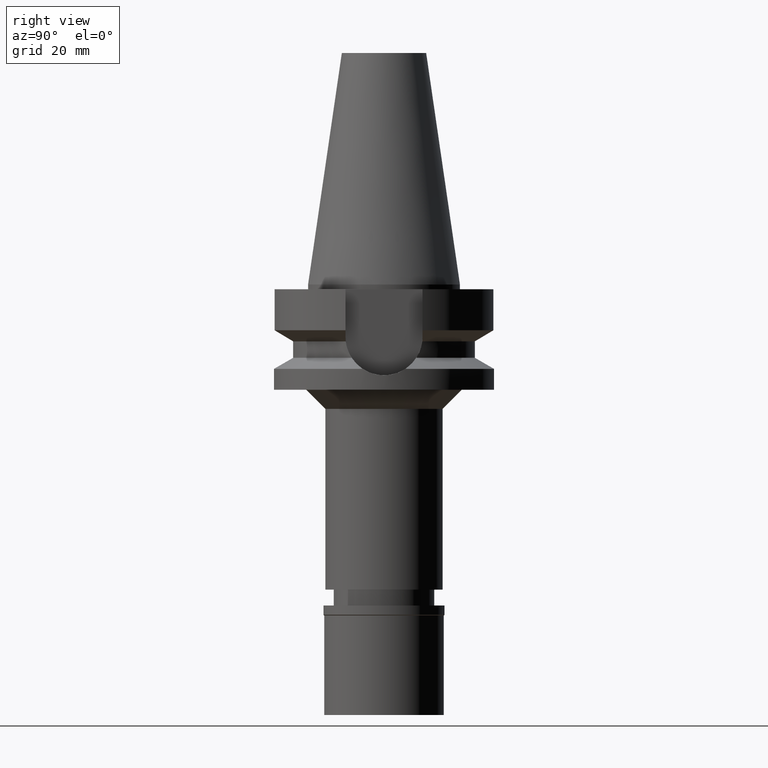
[diagram: clean part render]
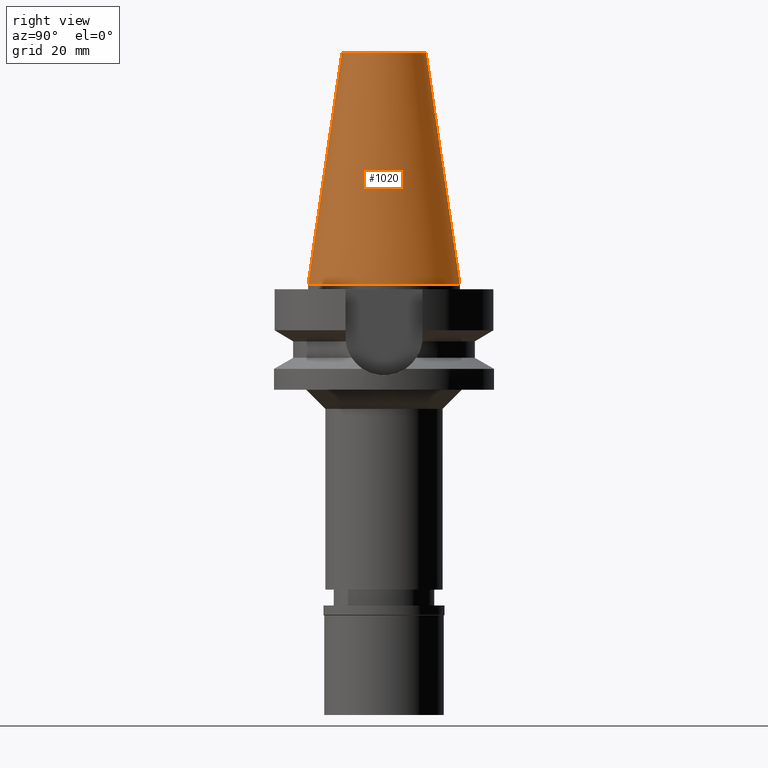
[diagram: same view with one face highlighted and labeled with its STEP entity id]
A machine part, right view. The second image highlights one B-rep face of the part: STEP entity #1020.
In plain terms, the highlighted conical surface has half-angle 8.297 deg.
Its self-contained STEP definition (entity closure, byte-faithful):
#34 = ORIENTED_EDGE ( 'NONE', *, *, #2721, .F. ) ;
#104 = CARTESIAN_POINT ( 'NONE',  ( 0.0000000000000000000, -8.816791732783000768, 48.39999999999999858 ) ) ;
#160 = EDGE_CURVE ( 'NONE', #2453, #1522, #2528, .T. ) ;
#177 = CIRCLE ( 'NONE', #1822, 15.87500000000000000 ) ;
#233 = EDGE_LOOP ( 'NONE', ( #2896, #1281, #393, #34 ) ) ;
#315 = DIRECTION ( 'NONE',  ( 0.0000000000000000000, 0.1443043893539925626, -0.9895333461855498891 ) ) ;
#393 = ORIENTED_EDGE ( 'NONE', *, *, #653, .F. ) ;
#477 = CARTESIAN_POINT ( 'NONE',  ( 0.0000000000000000000, 1.521011324540999938E-14, -3.694822225953000089E-13 ) ) ;
#576 = CARTESIAN_POINT ( 'NONE',  ( 0.0000000000000000000, 1.521011324540999938E-14, 24.19999999999999929 ) ) ;
#627 = CARTESIAN_POINT ( 'NONE',  ( 0.0000000000000000000, 1.521011324540999938E-14, 48.39999999999999858 ) ) ;
#653 = EDGE_CURVE ( 'NONE', #1226, #2931, #177, .T. ) ;
#694 = DIRECTION ( 'NONE',  ( 0.0000000000000000000, 1.000000000000000000, 0.0000000000000000000 ) ) ;
#876 = AXIS2_PLACEMENT_3D ( 'NONE', #576, #2243, #2719 ) ;
#1020 = ADVANCED_FACE ( 'NONE', ( #2428 ), #1921, .T. ) ;
#1226 = VERTEX_POINT ( 'NONE', #1626 ) ;
#1235 = DIRECTION ( 'NONE',  ( 0.0000000000000000000, 0.0000000000000000000, -1.000000000000000000 ) ) ;
#1281 = ORIENTED_EDGE ( 'NONE', *, *, #2276, .T. ) ;
#1522 = VERTEX_POINT ( 'NONE', #2900 ) ;
#1578 = DIRECTION ( 'NONE',  ( 0.0000000000000000000, -0.1443043893539925626, -0.9895333461855498891 ) ) ;
#1626 = CARTESIAN_POINT ( 'NONE',  ( 0.0000000000000000000, 15.87500000000000000, -1.598721155459999993E-13 ) ) ;
#1697 = CARTESIAN_POINT ( 'NONE',  ( 0.0000000000000000000, 8.816791732783000768, 48.39999999999999858 ) ) ;
#1794 = VECTOR ( 'NONE', #315, 1000.000000000000114 ) ;
#1822 = AXIS2_PLACEMENT_3D ( 'NONE', #477, #1235, #2172 ) ;
#1889 = AXIS2_PLACEMENT_3D ( 'NONE', #627, #2821, #694 ) ;
#1897 = VECTOR ( 'NONE', #1578, 1000.000000000000114 ) ;
#1921 = CONICAL_SURFACE ( 'NONE', #876, 12.34589586639000025, 0.1448099680379422438 ) ;
#2172 = DIRECTION ( 'NONE',  ( 0.0000000000000000000, 1.000000000000000000, 0.0000000000000000000 ) ) ;
#2242 = LINE ( 'NONE', #104, #1897 ) ;
#2243 = DIRECTION ( 'NONE',  ( 0.0000000000000000000, 0.0000000000000000000, -1.000000000000000000 ) ) ;
#2264 = CARTESIAN_POINT ( 'NONE',  ( 0.0000000000000000000, -15.87500000000000000, -1.598721155459999993E-13 ) ) ;
#2276 = EDGE_CURVE ( 'NONE', #1522, #2931, #2242, .T. ) ;
#2428 = FACE_OUTER_BOUND ( 'NONE', #233, .T. ) ;
#2453 = VERTEX_POINT ( 'NONE', #3028 ) ;
#2528 = CIRCLE ( 'NONE', #1889, 8.816791732783000768 ) ;
#2719 = DIRECTION ( 'NONE',  ( 0.0000000000000000000, -1.000000000000000000, 0.0000000000000000000 ) ) ;
#2721 = EDGE_CURVE ( 'NONE', #2453, #1226, #2872, .T. ) ;
#2821 = DIRECTION ( 'NONE',  ( 0.0000000000000000000, 0.0000000000000000000, -1.000000000000000000 ) ) ;
#2872 = LINE ( 'NONE', #1697, #1794 ) ;
#2896 = ORIENTED_EDGE ( 'NONE', *, *, #160, .T. ) ;
#2900 = CARTESIAN_POINT ( 'NONE',  ( 0.0000000000000000000, -8.816791732783000768, 48.39999999999999858 ) ) ;
#2931 = VERTEX_POINT ( 'NONE', #2264 ) ;
#3028 = CARTESIAN_POINT ( 'NONE',  ( 0.0000000000000000000, 8.816791732783000768, 48.39999999999999858 ) ) ;